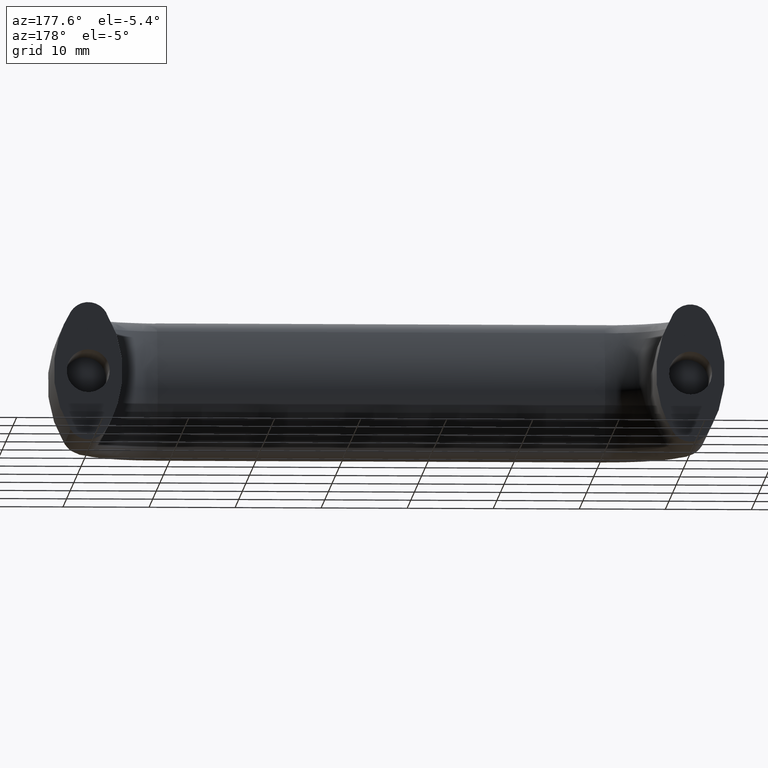
[diagram: clean part render]
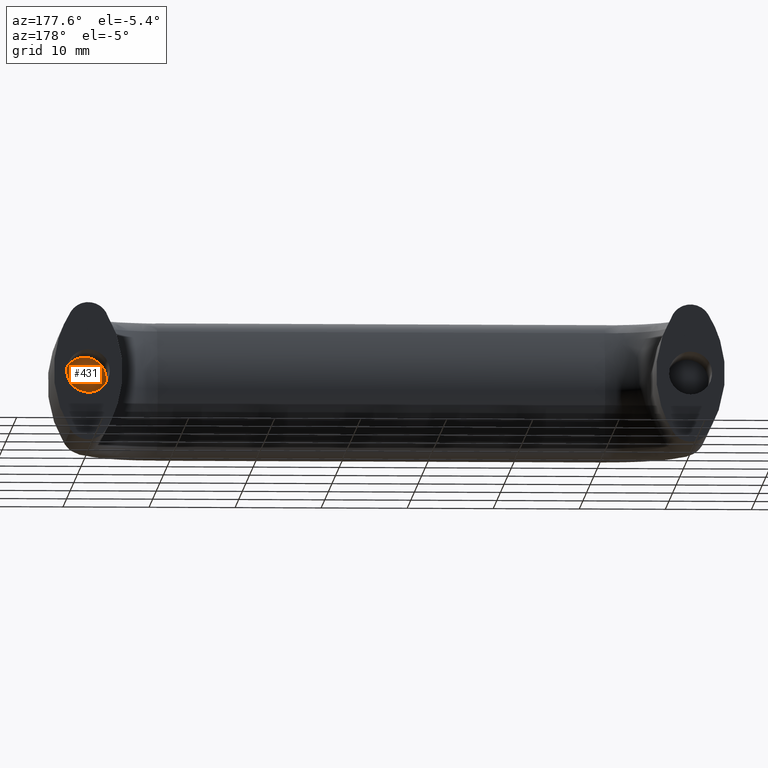
[diagram: same view with one face highlighted and labeled with its STEP entity id]
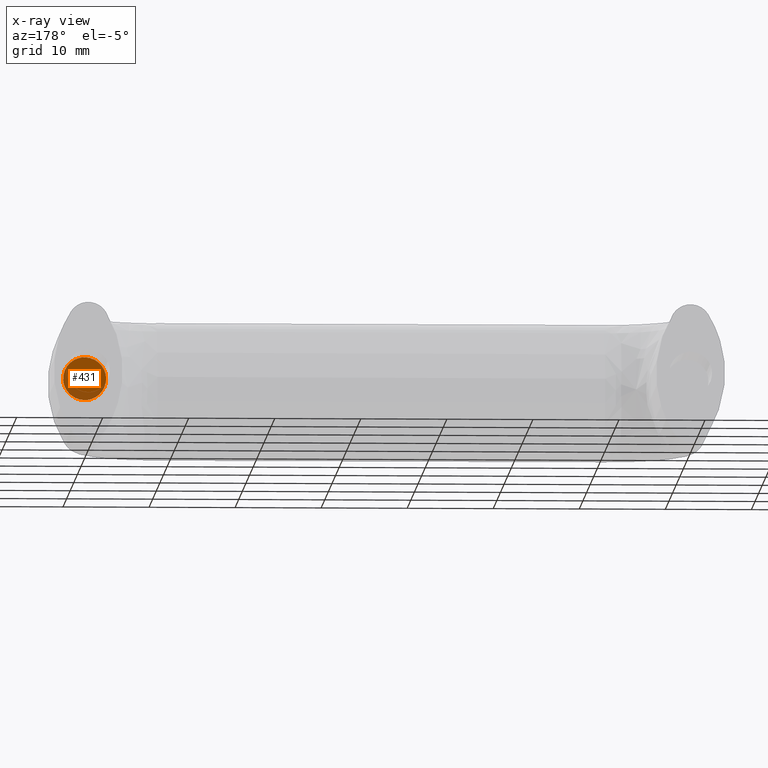
[diagram: x-ray of the same camera — body ghosted, the highlighted face saturated]
A machine part, auxiliary view. The second image highlights one B-rep face of the part: STEP entity #431.
The next image is the same camera in x-ray: the body ghosted, the highlighted face saturated — about 26% of this face is hidden behind the body in this view.
In plain terms, the highlighted face is a freeform B-spline surface patch.
Its self-contained STEP definition (entity closure, byte-faithful):
#244=CARTESIAN_POINT('',(70.0,-10.0,2.500000000000000));
#245=VERTEX_POINT('',#244);
#246=CARTESIAN_POINT('',(67.507706665673410,-10.0,0.196147739398782));
#247=VERTEX_POINT('',#246);
#248=CARTESIAN_POINT('',(70.0,-10.0,2.500000000000000));
#249=CARTESIAN_POINT('',(67.689023771001757,-9.999999999999998,2.499999999999999));
#250=CARTESIAN_POINT('',(67.507706665673410,-10.0,0.196147739398782));
#258=(BOUNDED_CURVE()B_SPLINE_CURVE(2,(#248,#249,#250),.UNSPECIFIED.,.F.,.U.)B_SPLINE_CURVE_WITH_KNOTS((3,3),(0.0,0.236331300621876),.UNSPECIFIED.)CURVE()GEOMETRIC_REPRESENTATION_ITEM()RATIONAL_B_SPLINE_CURVE((1.0,0.723120658617956,0.969723356149087))REPRESENTATION_ITEM(''));
#259=EDGE_CURVE('',#245,#247,#258,.T.);
#300=CARTESIAN_POINT('',(72.492293334326604,-10.0,-0.196147739398784));
#301=VERTEX_POINT('',#300);
#307=CARTESIAN_POINT('',(72.492293334326604,-10.000000000000002,-0.196147739398784));
#308=CARTESIAN_POINT('',(72.500000000000000,-10.0,-0.098225267598712));
#309=CARTESIAN_POINT('',(72.500000000000014,-10.0,0.0));
#310=CARTESIAN_POINT('',(72.500000000000014,-10.000000000000002,2.500000000000000));
#311=CARTESIAN_POINT('',(70.0,-10.0,2.500000000000000));
#319=(BOUNDED_CURVE()B_SPLINE_CURVE(2,(#307,#308,#309,#310,#311),.UNSPECIFIED.,.F.,.U.)B_SPLINE_CURVE_WITH_KNOTS((3,2,3),(0.736331300621876,0.750000000000000,1.0),.UNSPECIFIED.)CURVE()GEOMETRIC_REPRESENTATION_ITEM()RATIONAL_B_SPLINE_CURVE((0.969723356149087,0.983986122568591,1.0,0.707106781186548,1.0))REPRESENTATION_ITEM(''));
#320=EDGE_CURVE('',#301,#245,#319,.T.);
#343=CARTESIAN_POINT('',(70.0,-10.0,-2.500000000000000));
#344=VERTEX_POINT('',#343);
#345=CARTESIAN_POINT('',(67.507706665673410,-10.0,0.196147739398782));
#346=CARTESIAN_POINT('',(67.500000000000000,-10.0,0.098225267598711));
#347=CARTESIAN_POINT('',(67.500000000000000,-10.0,0.0));
#348=CARTESIAN_POINT('',(67.500000000000000,-10.000000000000002,-2.500000000000000));
#349=CARTESIAN_POINT('',(70.0,-10.0,-2.500000000000000));
#357=(BOUNDED_CURVE()B_SPLINE_CURVE(2,(#345,#346,#347,#348,#349),.UNSPECIFIED.,.F.,.U.)B_SPLINE_CURVE_WITH_KNOTS((3,2,3),(0.236331300621876,0.250000000000000,0.500000000000000),.UNSPECIFIED.)CURVE()GEOMETRIC_REPRESENTATION_ITEM()RATIONAL_B_SPLINE_CURVE((0.969723356149087,0.983986122568591,1.0,0.707106781186548,1.0))REPRESENTATION_ITEM(''));
#358=EDGE_CURVE('',#247,#344,#357,.T.);
#360=CARTESIAN_POINT('',(70.0,-10.0,-2.500000000000000));
#361=CARTESIAN_POINT('',(72.310976228998243,-9.999999999999998,-2.500000000000000));
#362=CARTESIAN_POINT('',(72.492293334326604,-10.000000000000002,-0.196147739398784));
#370=(BOUNDED_CURVE()B_SPLINE_CURVE(2,(#360,#361,#362),.UNSPECIFIED.,.F.,.U.)B_SPLINE_CURVE_WITH_KNOTS((3,3),(0.500000000000000,0.736331300621875),.UNSPECIFIED.)CURVE()GEOMETRIC_REPRESENTATION_ITEM()RATIONAL_B_SPLINE_CURVE((1.0,0.723120658617958,0.969723356149084))REPRESENTATION_ITEM(''));
#371=EDGE_CURVE('',#344,#301,#370,.T.);
#420=CARTESIAN_POINT('',(67.251013623274460,-10.0,2.749749990309030));
#421=CARTESIAN_POINT('',(72.748986242615103,-10.0,2.749749990309030));
#422=CARTESIAN_POINT('',(67.251013623274460,-10.0,-2.749750124419481));
#423=CARTESIAN_POINT('',(72.748986242615103,-10.0,-2.749750124419481));
#424=B_SPLINE_SURFACE_WITH_KNOTS('',1,1,((#420,#422),(#421,#423)),.UNSPECIFIED.,.F.,.F.,.U.,(2,2),(2,2),(0.0,5.497972619340644),(0.0,5.499500114728511),.UNSPECIFIED.);
#425=ORIENTED_EDGE('',*,*,#320,.F.);
#426=ORIENTED_EDGE('',*,*,#371,.F.);
#427=ORIENTED_EDGE('',*,*,#358,.F.);
#428=ORIENTED_EDGE('',*,*,#259,.F.);
#429=EDGE_LOOP('',(#425,#426,#427,#428));
#430=FACE_OUTER_BOUND('',#429,.T.);
#431=ADVANCED_FACE('',(#430),#424,.T.);